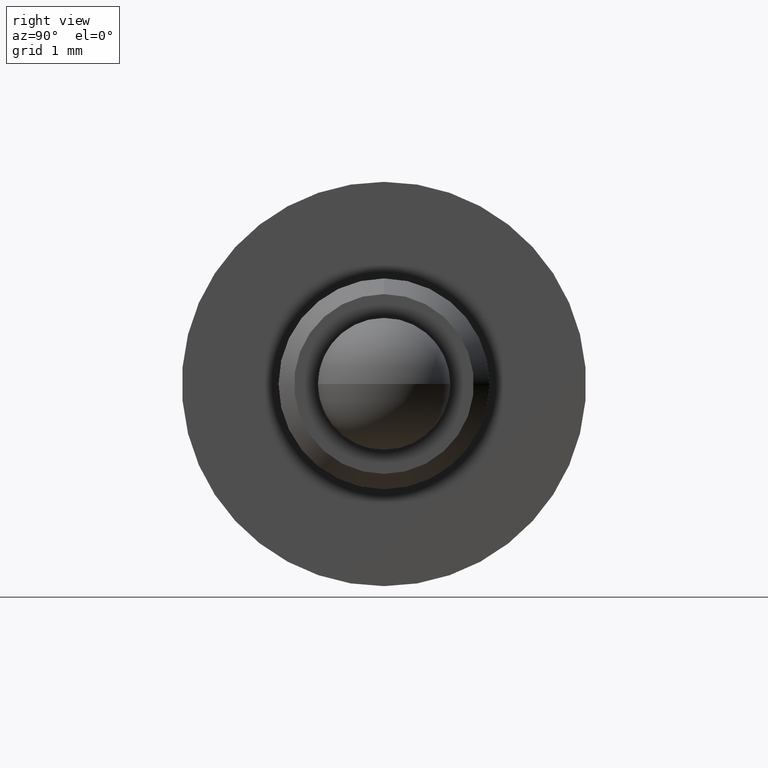
[diagram: clean part render]
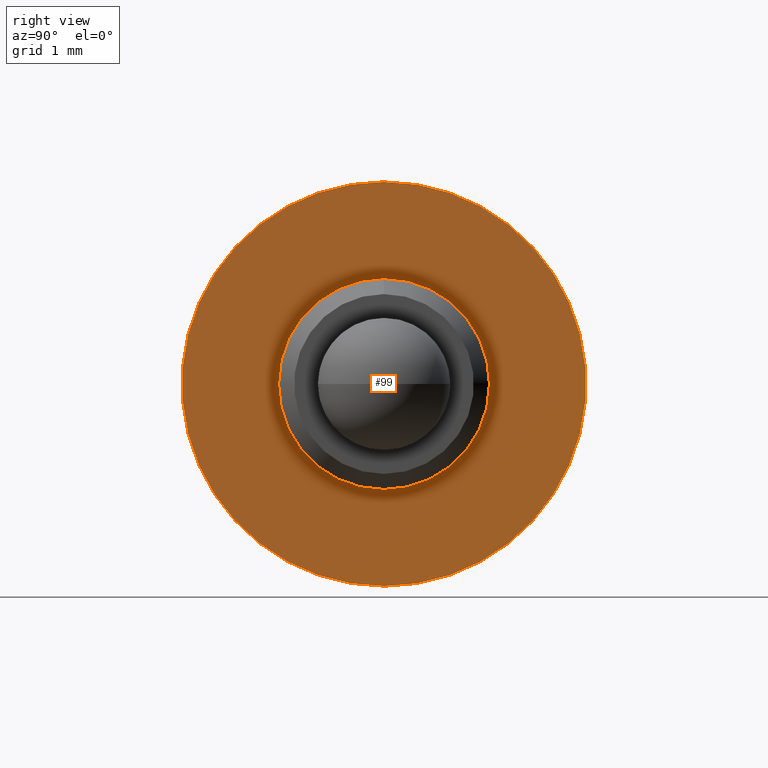
[diagram: same view with one face highlighted and labeled with its STEP entity id]
A machine part, right view. The second image highlights one B-rep face of the part: STEP entity #99.
In plain terms, the highlighted planar face has unit normal (-1, 0, -0).
Its self-contained STEP definition (entity closure, byte-faithful):
#49 = VERTEX_POINT ( 'NONE', #230 ) ;
#72 = CARTESIAN_POINT ( 'NONE',  ( -0.07049936205278306600, 0.0000000000000000000, 0.0000000000000000000 ) ) ;
#76 = CARTESIAN_POINT ( 'NONE',  ( -0.07049936205278306600, 2.381938024341601800E-016, -1.944999999999999800 ) ) ;
#78 = CARTESIAN_POINT ( 'NONE',  ( -0.07049936205278306600, 0.0000000000000000000, 1.014999999999999900 ) ) ;
#90 = FACE_BOUND ( 'NONE', #113, .T. ) ;
#94 = EDGE_LOOP ( 'NONE', ( #506, #420 ) ) ;
#99 = ADVANCED_FACE ( 'NONE', ( #137, #90 ), #112, .F. ) ;
#110 = DIRECTION ( 'NONE',  ( -1.000000000000000000, 0.0000000000000000000, -0.0000000000000000000 ) ) ;
#112 = PLANE ( 'NONE',  #289 ) ;
#113 = EDGE_LOOP ( 'NONE', ( #526, #127 ) ) ;
#125 = VERTEX_POINT ( 'NONE', #384 ) ;
#126 = EDGE_CURVE ( 'NONE', #235, #49, #167, .T. ) ;
#127 = ORIENTED_EDGE ( 'NONE', *, *, #354, .T. ) ;
#131 = EDGE_CURVE ( 'NONE', #125, #276, #495, .T. ) ;
#137 = FACE_OUTER_BOUND ( 'NONE', #94, .T. ) ;
#167 = CIRCLE ( 'NONE', #265, 1.014999999999999900 ) ;
#169 = CARTESIAN_POINT ( 'NONE',  ( -0.07049936205278306600, 0.0000000000000000000, 0.0000000000000000000 ) ) ;
#180 = AXIS2_PLACEMENT_3D ( 'NONE', #197, #396, #359 ) ;
#189 = DIRECTION ( 'NONE',  ( -1.000000000000000000, -0.0000000000000000000, -0.0000000000000000000 ) ) ;
#196 = DIRECTION ( 'NONE',  ( 0.0000000000000000000, 0.0000000000000000000, 1.000000000000000000 ) ) ;
#197 = CARTESIAN_POINT ( 'NONE',  ( -0.07049936205278306600, 0.0000000000000000000, 0.0000000000000000000 ) ) ;
#230 = CARTESIAN_POINT ( 'NONE',  ( -0.07049936205278306600, 1.243016501134563300E-016, -1.014999999999999900 ) ) ;
#235 = VERTEX_POINT ( 'NONE', #78 ) ;
#237 = DIRECTION ( 'NONE',  ( -1.000000000000000000, -0.0000000000000000000, -0.0000000000000000000 ) ) ;
#265 = AXIS2_PLACEMENT_3D ( 'NONE', #432, #189, #480 ) ;
#266 = CARTESIAN_POINT ( 'NONE',  ( -0.07049936205278295500, 1.014999999999999900, 0.0000000000000000000 ) ) ;
#276 = VERTEX_POINT ( 'NONE', #76 ) ;
#289 = AXIS2_PLACEMENT_3D ( 'NONE', #266, #110, #306 ) ;
#290 = EDGE_CURVE ( 'NONE', #276, #125, #360, .T. ) ;
#306 = DIRECTION ( 'NONE',  ( -0.0000000000000000000, 0.0000000000000000000, 1.000000000000000000 ) ) ;
#339 = AXIS2_PLACEMENT_3D ( 'NONE', #72, #237, #196 ) ;
#354 = EDGE_CURVE ( 'NONE', #49, #235, #481, .T. ) ;
#359 = DIRECTION ( 'NONE',  ( 0.0000000000000000000, 0.0000000000000000000, 1.000000000000000000 ) ) ;
#360 = CIRCLE ( 'NONE', #180, 1.944999999999999800 ) ;
#384 = CARTESIAN_POINT ( 'NONE',  ( -0.07049936205278306600, 0.0000000000000000000, 1.944999999999999800 ) ) ;
#396 = DIRECTION ( 'NONE',  ( -1.000000000000000000, -0.0000000000000000000, -0.0000000000000000000 ) ) ;
#420 = ORIENTED_EDGE ( 'NONE', *, *, #290, .F. ) ;
#432 = CARTESIAN_POINT ( 'NONE',  ( -0.07049936205278306600, 0.0000000000000000000, 0.0000000000000000000 ) ) ;
#455 = DIRECTION ( 'NONE',  ( -1.000000000000000000, -0.0000000000000000000, -0.0000000000000000000 ) ) ;
#458 = DIRECTION ( 'NONE',  ( 0.0000000000000000000, 0.0000000000000000000, 1.000000000000000000 ) ) ;
#467 = AXIS2_PLACEMENT_3D ( 'NONE', #169, #455, #458 ) ;
#480 = DIRECTION ( 'NONE',  ( 0.0000000000000000000, 0.0000000000000000000, 1.000000000000000000 ) ) ;
#481 = CIRCLE ( 'NONE', #467, 1.014999999999999900 ) ;
#495 = CIRCLE ( 'NONE', #339, 1.944999999999999800 ) ;
#506 = ORIENTED_EDGE ( 'NONE', *, *, #131, .F. ) ;
#526 = ORIENTED_EDGE ( 'NONE', *, *, #126, .T. ) ;